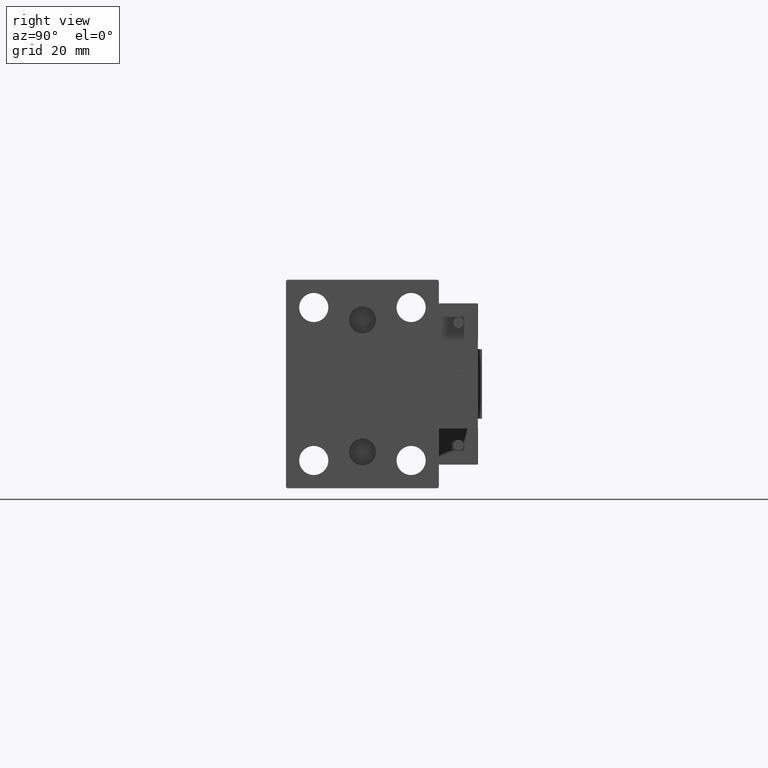
[diagram: clean part render]
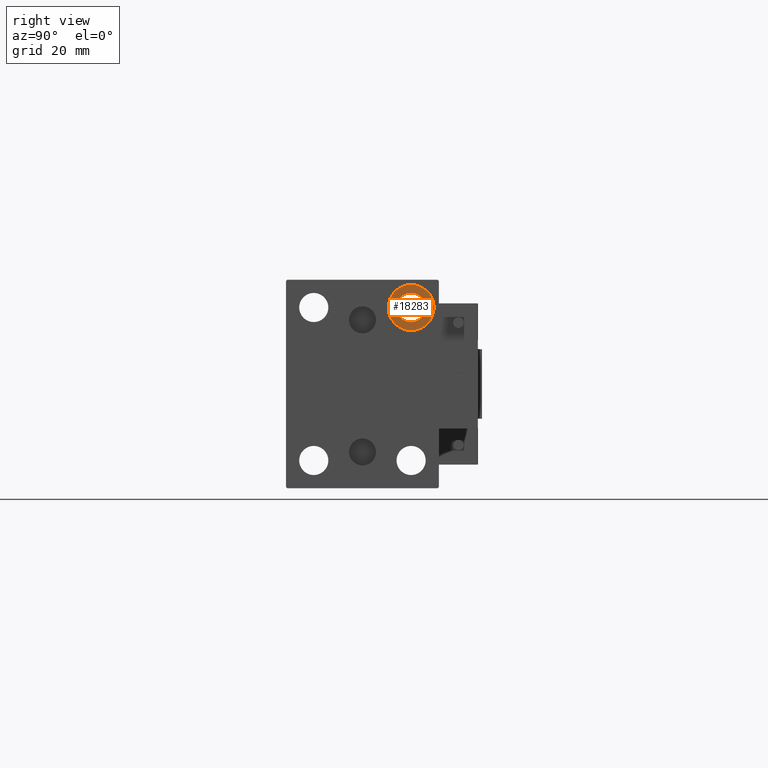
[diagram: same view with one face highlighted and labeled with its STEP entity id]
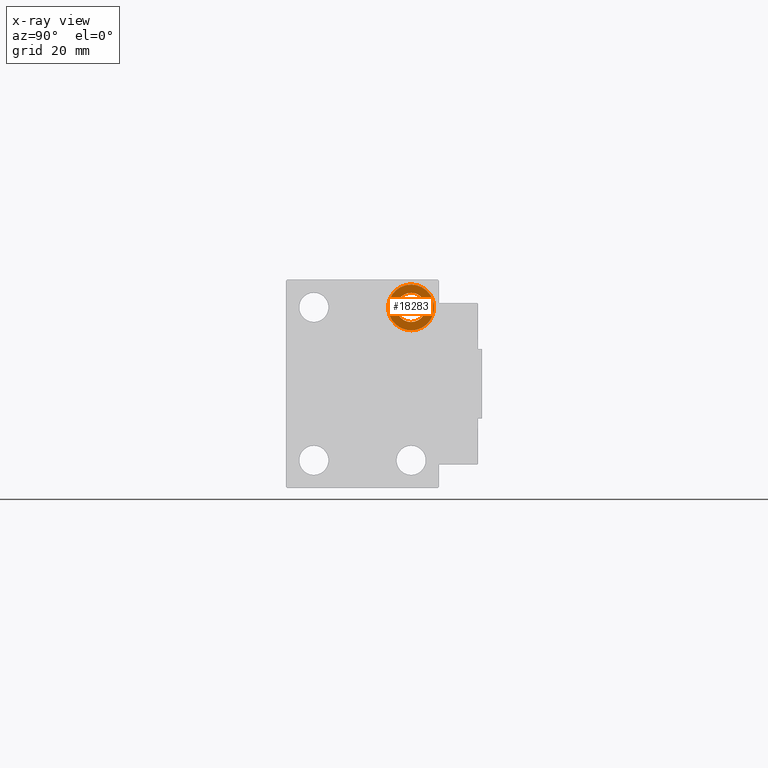
[diagram: x-ray of the same camera — body ghosted, the highlighted face saturated]
A machine part, right view. The second image highlights one B-rep face of the part: STEP entity #18283.
The next image is the same camera in x-ray: the body ghosted, the highlighted face saturated — about 0% of this face is hidden behind the body in this view.
In plain terms, the highlighted planar face has unit normal (1, 0, 0).
Its self-contained STEP definition (entity closure, byte-faithful):
#2628 = EDGE_LOOP ( 'NONE', ( #25433, #31520 ) ) ;
#2638 = AXIS2_PLACEMENT_3D ( 'NONE', #17005, #33251, #41254 ) ;
#2920 = DIRECTION ( 'NONE',  ( 0.000000000000000000, 0.000000000000000000, -1.000000000000000000 ) ) ;
#5328 = CARTESIAN_POINT ( 'NONE',  ( 104.0000000000000142, 17.50000000000000355, 19.25000000000000000 ) ) ;
#5492 = AXIS2_PLACEMENT_3D ( 'NONE', #33851, #46131, #2920 ) ;
#7749 = EDGE_LOOP ( 'NONE', ( #34860, #22666 ) ) ;
#9754 = AXIS2_PLACEMENT_3D ( 'NONE', #52178, #10591, #35357 ) ;
#10591 = DIRECTION ( 'NONE',  ( -1.000000000000000000, -0.000000000000000000, -0.000000000000000000 ) ) ;
#11787 = DIRECTION ( 'NONE',  ( 0.000000000000000000, 0.000000000000000000, 1.000000000000000000 ) ) ;
#12833 = CIRCLE ( 'NONE', #2638, 8.249999999999992895 ) ;
#14369 = AXIS2_PLACEMENT_3D ( 'NONE', #20034, #40549, #27502 ) ;
#17005 = CARTESIAN_POINT ( 'NONE',  ( 104.0000000000000142, 17.50000000000000355, 27.49999999999999645 ) ) ;
#17243 = EDGE_CURVE ( 'NONE', #22737, #34195, #29340, .T. ) ;
#17578 = EDGE_CURVE ( 'NONE', #42133, #43590, #42968, .T. ) ;
#18283 = ADVANCED_FACE ( 'NONE', ( #25276, #43773 ), #52325, .T. ) ;
#19510 = CARTESIAN_POINT ( 'NONE',  ( 104.0000000000000142, 0.000000000000000000, 0.000000000000000000 ) ) ;
#20034 = CARTESIAN_POINT ( 'NONE',  ( 104.0000000000000142, 17.50000000000000355, 27.49999999999999645 ) ) ;
#22666 = ORIENTED_EDGE ( 'NONE', *, *, #17578, .F. ) ;
#22737 = VERTEX_POINT ( 'NONE', #33585 ) ;
#25276 = FACE_OUTER_BOUND ( 'NONE', #7749, .T. ) ;
#25433 = ORIENTED_EDGE ( 'NONE', *, *, #17243, .T. ) ;
#27502 = DIRECTION ( 'NONE',  ( 0.000000000000000000, 0.000000000000000000, -1.000000000000000000 ) ) ;
#29340 = CIRCLE ( 'NONE', #5492, 5.249999999999997335 ) ;
#31398 = EDGE_CURVE ( 'NONE', #34195, #22737, #35619, .T. ) ;
#31520 = ORIENTED_EDGE ( 'NONE', *, *, #31398, .T. ) ;
#33251 = DIRECTION ( 'NONE',  ( -1.000000000000000000, -0.000000000000000000, -0.000000000000000000 ) ) ;
#33585 = CARTESIAN_POINT ( 'NONE',  ( 104.0000000000000142, 17.50000000000000355, 32.74999999999999289 ) ) ;
#33851 = CARTESIAN_POINT ( 'NONE',  ( 104.0000000000000142, 17.50000000000000355, 27.49999999999999645 ) ) ;
#34195 = VERTEX_POINT ( 'NONE', #35383 ) ;
#34860 = ORIENTED_EDGE ( 'NONE', *, *, #39516, .F. ) ;
#35357 = DIRECTION ( 'NONE',  ( 0.000000000000000000, 0.000000000000000000, 1.000000000000000000 ) ) ;
#35383 = CARTESIAN_POINT ( 'NONE',  ( 104.0000000000000142, 17.50000000000000355, 22.25000000000000000 ) ) ;
#35619 = CIRCLE ( 'NONE', #14369, 5.249999999999997335 ) ;
#35758 = DIRECTION ( 'NONE',  ( 1.000000000000000000, 0.000000000000000000, -0.000000000000000000 ) ) ;
#39516 = EDGE_CURVE ( 'NONE', #43590, #42133, #12833, .T. ) ;
#40549 = DIRECTION ( 'NONE',  ( -1.000000000000000000, -0.000000000000000000, -0.000000000000000000 ) ) ;
#41254 = DIRECTION ( 'NONE',  ( 0.000000000000000000, 0.000000000000000000, 1.000000000000000000 ) ) ;
#42133 = VERTEX_POINT ( 'NONE', #42749 ) ;
#42749 = CARTESIAN_POINT ( 'NONE',  ( 104.0000000000000142, 17.50000000000000355, 35.74999999999999289 ) ) ;
#42968 = CIRCLE ( 'NONE', #9754, 8.249999999999992895 ) ;
#43590 = VERTEX_POINT ( 'NONE', #5328 ) ;
#43773 = FACE_BOUND ( 'NONE', #2628, .T. ) ;
#46131 = DIRECTION ( 'NONE',  ( -1.000000000000000000, -0.000000000000000000, -0.000000000000000000 ) ) ;
#46414 = AXIS2_PLACEMENT_3D ( 'NONE', #19510, #35758, #11787 ) ;
#52178 = CARTESIAN_POINT ( 'NONE',  ( 104.0000000000000142, 17.50000000000000355, 27.49999999999999645 ) ) ;
#52325 = PLANE ( 'NONE',  #46414 ) ;